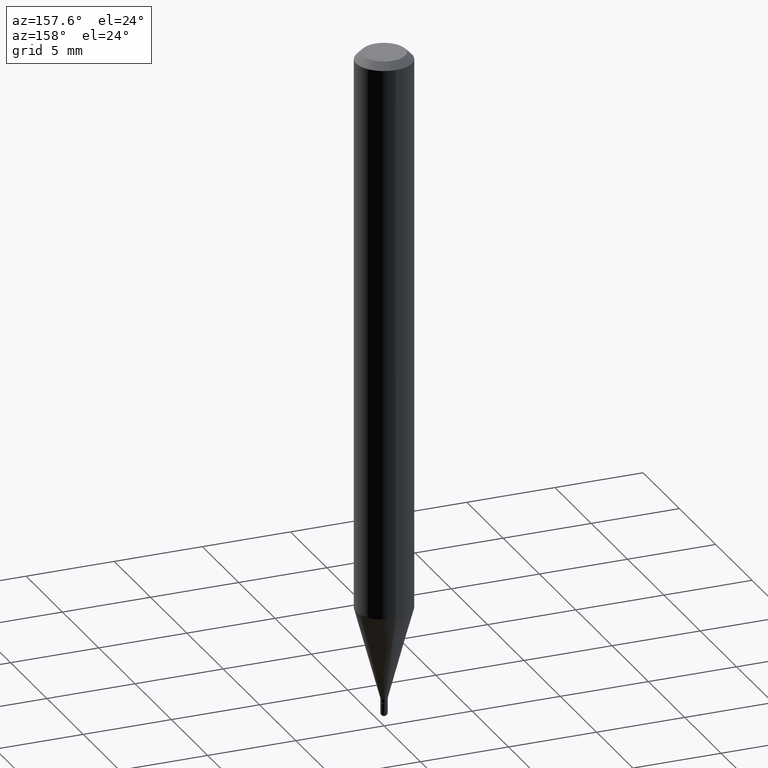
[diagram: clean part render]
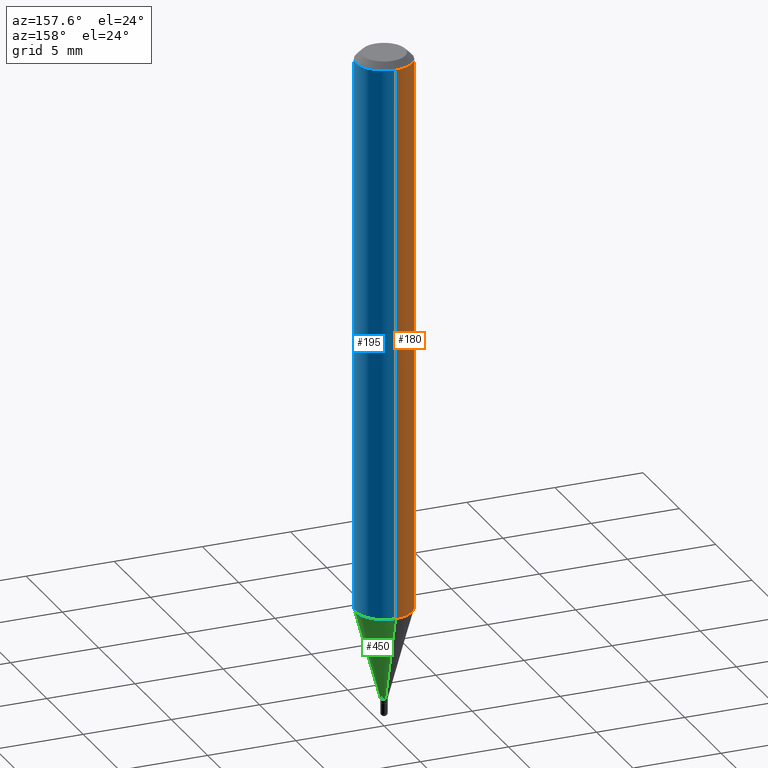
[diagram: same view with three faces highlighted in distinct colors, each labeled with its STEP entity id]
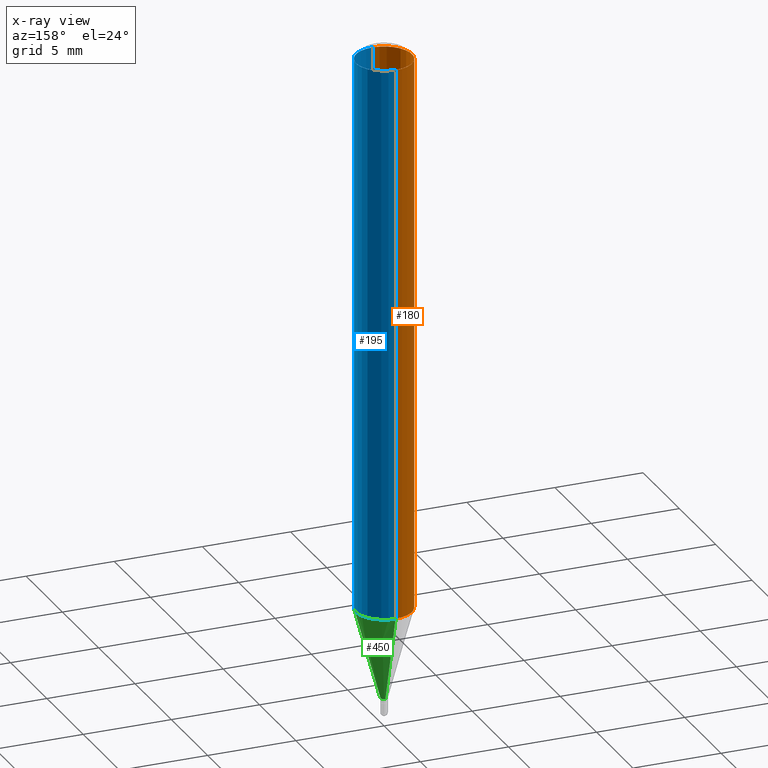
[diagram: x-ray of the same camera — body ghosted, the three highlighted faces saturated]
A machine part, auxiliary view with three faces highlighted in distinct colors.
The next image is the same camera in x-ray (body ghosted, the three faces saturated) — at least one of them is partly hidden behind the body in this view.
Their STEP definitions:

[orange] entity #180 — the highlighted cylindrical surface (edge-blend (fillet) strip) has radius 1.5875 mm, axis along (-0, 0, 1).
#41 = EDGE_CURVE ( 'NONE', #463, #117, #324, .T. ) ;
#66 = CARTESIAN_POINT ( 'NONE',  ( 4.440892098500930859E-16, 0.06249999999999560074, -1.254856820825983377 ) ) ;
#80 = DIRECTION ( 'NONE',  ( -2.445232611711644986E-29, 3.491819582772540483E-15, 1.000000000000000000 ) ) ;
#85 = DIRECTION ( 'NONE',  ( -6.982962677686265922E-15, -1.000000000000000000, 3.491819582772540088E-15 ) ) ;
#95 = EDGE_LOOP ( 'NONE', ( #451, #267, #250, #149 ) ) ;
#117 = VERTEX_POINT ( 'NONE', #395 ) ;
#123 = CYLINDRICAL_SURFACE ( 'NONE', #154, 0.06250000000000000000 ) ;
#125 = DIRECTION ( 'NONE',  ( -6.982962677686265922E-15, -1.000000000000000000, 3.483106191921935554E-15 ) ) ;
#126 = CARTESIAN_POINT ( 'NONE',  ( 0.000000000000000000, 0.000000000000000000, 0.000000000000000000 ) ) ;
#142 = EDGE_CURVE ( 'NONE', #117, #498, #191, .T. ) ;
#147 = VECTOR ( 'NONE', #471, 39.37007874015748143 ) ;
#149 = ORIENTED_EDGE ( 'NONE', *, *, #166, .F. ) ;
#154 = AXIS2_PLACEMENT_3D ( 'NONE', #126, #425, #85 ) ;
#162 = DIRECTION ( 'NONE',  ( -2.445232611711644986E-29, 3.491819582772540088E-15, 1.000000000000000000 ) ) ;
#166 = EDGE_CURVE ( 'NONE', #397, #498, #212, .T. ) ;
#171 = EDGE_CURVE ( 'NONE', #463, #397, #428, .T. ) ;
#180 = ADVANCED_FACE ( 'NONE', ( #358 ), #123, .T. ) ;
#190 = CARTESIAN_POINT ( 'NONE',  ( 3.068416821312490744E-29, -4.381733620535860243E-15, -1.254856820825983155 ) ) ;
#191 = LINE ( 'NONE', #318, #147 ) ;
#210 = CARTESIAN_POINT ( 'NONE',  ( 4.440892098500934804E-16, 0.06249999999999995143, -0.01500000000000022669 ) ) ;
#212 = CIRCLE ( 'NONE', #445, 0.06250000000000000000 ) ;
#250 = ORIENTED_EDGE ( 'NONE', *, *, #142, .T. ) ;
#267 = ORIENTED_EDGE ( 'NONE', *, *, #41, .T. ) ;
#276 = CARTESIAN_POINT ( 'NONE',  ( 3.667848917567469827E-31, -5.237729374158814249E-17, -0.01500000000000000812 ) ) ;
#278 = AXIS2_PLACEMENT_3D ( 'NONE', #190, #349, #500 ) ;
#318 = CARTESIAN_POINT ( 'NONE',  ( -4.364351673553916201E-16, -0.06250000000000000000, 2.182387239232837555E-16 ) ) ;
#324 = CIRCLE ( 'NONE', #278, 0.06250000000000000000 ) ;
#349 = DIRECTION ( 'NONE',  ( -2.445232611711644986E-29, 3.491819582772540088E-15, 1.000000000000000000 ) ) ;
#358 = FACE_OUTER_BOUND ( 'NONE', #95, .T. ) ;
#395 = CARTESIAN_POINT ( 'NONE',  ( -4.364351673553610024E-16, -0.06250000000000438538, -1.254856820825982933 ) ) ;
#397 = VERTEX_POINT ( 'NONE', #210 ) ;
#420 = VECTOR ( 'NONE', #80, 39.37007874015748143 ) ;
#422 = CARTESIAN_POINT ( 'NONE',  ( 4.440892098500625669E-16, 0.06250000000000000000, -2.182387239232837555E-16 ) ) ;
#425 = DIRECTION ( 'NONE',  ( -2.445232611711644986E-29, 3.491819582772540088E-15, 1.000000000000000000 ) ) ;
#428 = LINE ( 'NONE', #422, #420 ) ;
#445 = AXIS2_PLACEMENT_3D ( 'NONE', #276, #162, #125 ) ;
#451 = ORIENTED_EDGE ( 'NONE', *, *, #171, .F. ) ;
#463 = VERTEX_POINT ( 'NONE', #66 ) ;
#471 = DIRECTION ( 'NONE',  ( -2.445232611711644986E-29, 3.491819582772540483E-15, 1.000000000000000000 ) ) ;
#486 = CARTESIAN_POINT ( 'NONE',  ( -4.364351673553912750E-16, -0.06250000000000005551, -0.01499999999999979128 ) ) ;
#498 = VERTEX_POINT ( 'NONE', #486 ) ;
#500 = DIRECTION ( 'NONE',  ( -6.982962677686265922E-15, -1.000000000000000000, 4.370956789862821150E-15 ) ) ;

[blue] entity #195 — the highlighted cylindrical surface (edge-blend (fillet) strip) has radius 1.5875 mm, axis along (-0, 0, 1).
#1 = CARTESIAN_POINT ( 'NONE',  ( 0.000000000000000000, 0.000000000000000000, 0.000000000000000000 ) ) ;
#27 = EDGE_LOOP ( 'NONE', ( #346, #366, #466, #230 ) ) ;
#37 = CARTESIAN_POINT ( 'NONE',  ( 3.667848917567469827E-31, -5.237729374158814249E-17, -0.01500000000000000812 ) ) ;
#66 = CARTESIAN_POINT ( 'NONE',  ( 4.440892098500930859E-16, 0.06249999999999560074, -1.254856820825983377 ) ) ;
#76 = FACE_OUTER_BOUND ( 'NONE', #27, .T. ) ;
#80 = DIRECTION ( 'NONE',  ( -2.445232611711644986E-29, 3.491819582772540483E-15, 1.000000000000000000 ) ) ;
#115 = EDGE_CURVE ( 'NONE', #117, #463, #391, .T. ) ;
#117 = VERTEX_POINT ( 'NONE', #395 ) ;
#142 = EDGE_CURVE ( 'NONE', #117, #498, #191, .T. ) ;
#147 = VECTOR ( 'NONE', #471, 39.37007874015748143 ) ;
#158 = DIRECTION ( 'NONE',  ( -6.982962677686265922E-15, -1.000000000000000000, 4.370956789862821150E-15 ) ) ;
#164 = DIRECTION ( 'NONE',  ( -2.445232611711644986E-29, 3.491819582772540088E-15, 1.000000000000000000 ) ) ;
#171 = EDGE_CURVE ( 'NONE', #463, #397, #428, .T. ) ;
#173 = DIRECTION ( 'NONE',  ( -6.982962677686265922E-15, -1.000000000000000000, 3.483106191921935554E-15 ) ) ;
#178 = AXIS2_PLACEMENT_3D ( 'NONE', #37, #510, #173 ) ;
#187 = CIRCLE ( 'NONE', #178, 0.06250000000000000000 ) ;
#191 = LINE ( 'NONE', #318, #147 ) ;
#195 = ADVANCED_FACE ( 'NONE', ( #76 ), #386, .T. ) ;
#210 = CARTESIAN_POINT ( 'NONE',  ( 4.440892098500934804E-16, 0.06249999999999995143, -0.01500000000000022669 ) ) ;
#218 = EDGE_CURVE ( 'NONE', #498, #397, #187, .T. ) ;
#230 = ORIENTED_EDGE ( 'NONE', *, *, #142, .F. ) ;
#239 = DIRECTION ( 'NONE',  ( -6.982962677686265922E-15, -1.000000000000000000, 3.491819582772540088E-15 ) ) ;
#245 = DIRECTION ( 'NONE',  ( -2.445232611711644986E-29, 3.491819582772540088E-15, 1.000000000000000000 ) ) ;
#295 = AXIS2_PLACEMENT_3D ( 'NONE', #1, #164, #239 ) ;
#307 = AXIS2_PLACEMENT_3D ( 'NONE', #351, #245, #158 ) ;
#318 = CARTESIAN_POINT ( 'NONE',  ( -4.364351673553916201E-16, -0.06250000000000000000, 2.182387239232837555E-16 ) ) ;
#346 = ORIENTED_EDGE ( 'NONE', *, *, #115, .T. ) ;
#351 = CARTESIAN_POINT ( 'NONE',  ( 3.068416821312490744E-29, -4.381733620535860243E-15, -1.254856820825983155 ) ) ;
#366 = ORIENTED_EDGE ( 'NONE', *, *, #171, .T. ) ;
#386 = CYLINDRICAL_SURFACE ( 'NONE', #295, 0.06250000000000000000 ) ;
#391 = CIRCLE ( 'NONE', #307, 0.06250000000000000000 ) ;
#395 = CARTESIAN_POINT ( 'NONE',  ( -4.364351673553610024E-16, -0.06250000000000438538, -1.254856820825982933 ) ) ;
#397 = VERTEX_POINT ( 'NONE', #210 ) ;
#420 = VECTOR ( 'NONE', #80, 39.37007874015748143 ) ;
#422 = CARTESIAN_POINT ( 'NONE',  ( 4.440892098500625669E-16, 0.06250000000000000000, -2.182387239232837555E-16 ) ) ;
#428 = LINE ( 'NONE', #422, #420 ) ;
#463 = VERTEX_POINT ( 'NONE', #66 ) ;
#466 = ORIENTED_EDGE ( 'NONE', *, *, #218, .F. ) ;
#471 = DIRECTION ( 'NONE',  ( -2.445232611711644986E-29, 3.491819582772540483E-15, 1.000000000000000000 ) ) ;
#486 = CARTESIAN_POINT ( 'NONE',  ( -4.364351673553912750E-16, -0.06250000000000005551, -0.01499999999999979128 ) ) ;
#498 = VERTEX_POINT ( 'NONE', #486 ) ;
#510 = DIRECTION ( 'NONE',  ( -2.445232611711644986E-29, 3.491819582772540088E-15, 1.000000000000000000 ) ) ;

[green] entity #450 — the highlighted conical surface has half-angle 15 deg.
#56 = CARTESIAN_POINT ( 'NONE',  ( -5.446710888591665753E-17, -0.007800000000005017330, -1.459000000000000297 ) ) ;
#59 = DIRECTION ( 'NONE',  ( -1.807323732225330928E-15, -0.2588190451025182970, 0.9659258262890689783 ) ) ;
#66 = CARTESIAN_POINT ( 'NONE',  ( 4.440892098500930859E-16, 0.06249999999999560074, -1.254856820825983377 ) ) ;
#70 = DIRECTION ( 'NONE',  ( -6.982962677686265922E-15, -1.000000000000000000, 0.000000000000000000 ) ) ;
#77 = EDGE_CURVE ( 'NONE', #402, #226, #412, .T. ) ;
#79 = ORIENTED_EDGE ( 'NONE', *, *, #418, .F. ) ;
#100 = CARTESIAN_POINT ( 'NONE',  ( 5.542233338932293475E-17, 0.007799999999994828431, -1.459000000000000297 ) ) ;
#115 = EDGE_CURVE ( 'NONE', #117, #463, #391, .T. ) ;
#117 = VERTEX_POINT ( 'NONE', #395 ) ;
#124 = VECTOR ( 'NONE', #408, 39.37007874015748143 ) ;
#138 = LINE ( 'NONE', #56, #361 ) ;
#140 = ORIENTED_EDGE ( 'NONE', *, *, #469, .T. ) ;
#141 = CARTESIAN_POINT ( 'NONE',  ( 3.567594380487290426E-29, -5.094564771265136885E-15, -1.459000000000000297 ) ) ;
#158 = DIRECTION ( 'NONE',  ( -6.982962677686265922E-15, -1.000000000000000000, 4.370956789862821150E-15 ) ) ;
#215 = DIRECTION ( 'NONE',  ( -6.982962677686265922E-15, -1.000000000000000000, 0.000000000000000000 ) ) ;
#226 = VERTEX_POINT ( 'NONE', #483 ) ;
#235 = AXIS2_PLACEMENT_3D ( 'NONE', #141, #340, #215 ) ;
#245 = DIRECTION ( 'NONE',  ( -2.445232611711644986E-29, 3.491819582772540088E-15, 1.000000000000000000 ) ) ;
#298 = FACE_OUTER_BOUND ( 'NONE', #377, .T. ) ;
#307 = AXIS2_PLACEMENT_3D ( 'NONE', #351, #245, #158 ) ;
#316 = AXIS2_PLACEMENT_3D ( 'NONE', #344, #417, #70 ) ;
#328 = ORIENTED_EDGE ( 'NONE', *, *, #77, .T. ) ;
#340 = DIRECTION ( 'NONE',  ( -2.445232611711644986E-29, 3.491819582772540088E-15, 1.000000000000000000 ) ) ;
#344 = CARTESIAN_POINT ( 'NONE',  ( 3.567594380487290426E-29, -5.094564771265136885E-15, -1.459000000000000297 ) ) ;
#351 = CARTESIAN_POINT ( 'NONE',  ( 3.068416821312490744E-29, -4.381733620535860243E-15, -1.254856820825983155 ) ) ;
#361 = VECTOR ( 'NONE', #59, 39.37007874015748143 ) ;
#365 = CARTESIAN_POINT ( 'NONE',  ( -5.446710888591665753E-17, -0.007800000000005017330, -1.459000000000000297 ) ) ;
#376 = LINE ( 'NONE', #100, #124 ) ;
#377 = EDGE_LOOP ( 'NONE', ( #328, #140, #383, #79 ) ) ;
#383 = ORIENTED_EDGE ( 'NONE', *, *, #115, .F. ) ;
#391 = CIRCLE ( 'NONE', #307, 0.06250000000000000000 ) ;
#395 = CARTESIAN_POINT ( 'NONE',  ( -4.364351673553610024E-16, -0.06250000000000438538, -1.254856820825982933 ) ) ;
#400 = CONICAL_SURFACE ( 'NONE', #235, 0.007799999999999922447, 0.2617993877991502960 ) ;
#402 = VERTEX_POINT ( 'NONE', #365 ) ;
#408 = DIRECTION ( 'NONE',  ( 1.839019923739601104E-15, 0.2588190451025250693, 0.9659258262890670910 ) ) ;
#412 = CIRCLE ( 'NONE', #316, 0.007799999999999922447 ) ;
#417 = DIRECTION ( 'NONE',  ( -2.445232611711644986E-29, 3.491819582772540088E-15, 1.000000000000000000 ) ) ;
#418 = EDGE_CURVE ( 'NONE', #402, #117, #138, .T. ) ;
#450 = ADVANCED_FACE ( 'NONE', ( #298 ), #400, .T. ) ;
#463 = VERTEX_POINT ( 'NONE', #66 ) ;
#469 = EDGE_CURVE ( 'NONE', #226, #463, #376, .T. ) ;
#483 = CARTESIAN_POINT ( 'NONE',  ( 2.497557716197082045E-16, 0.007799999999994826697, -1.459000000000000297 ) ) ;